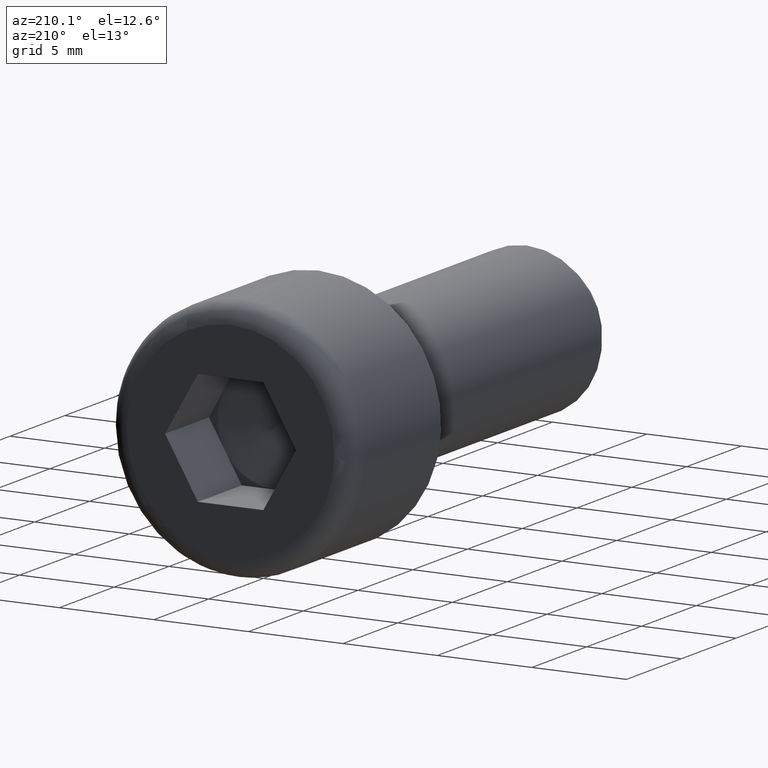
[diagram: clean part render]
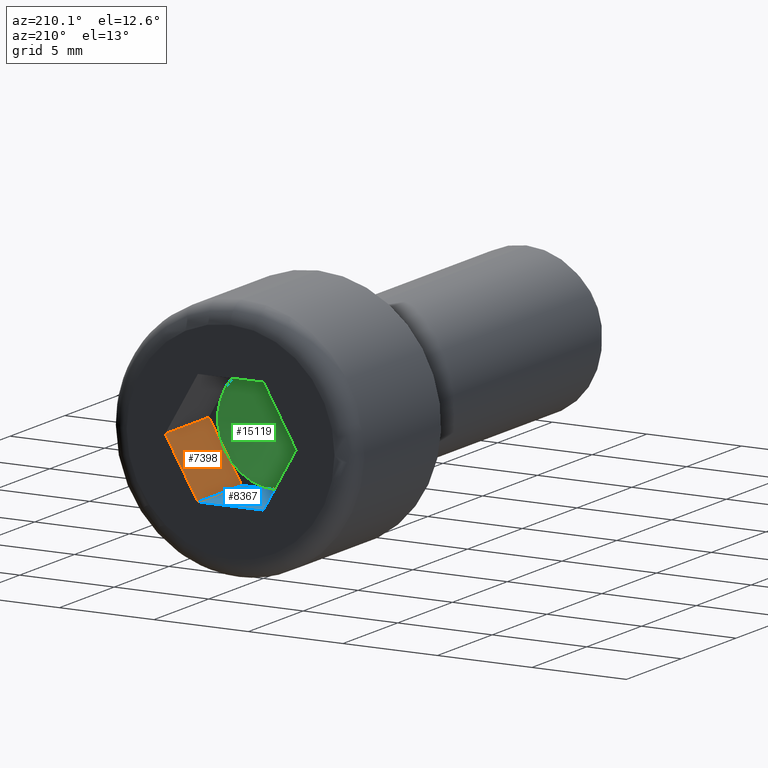
[diagram: same view with three faces highlighted in distinct colors, each labeled with its STEP entity id]
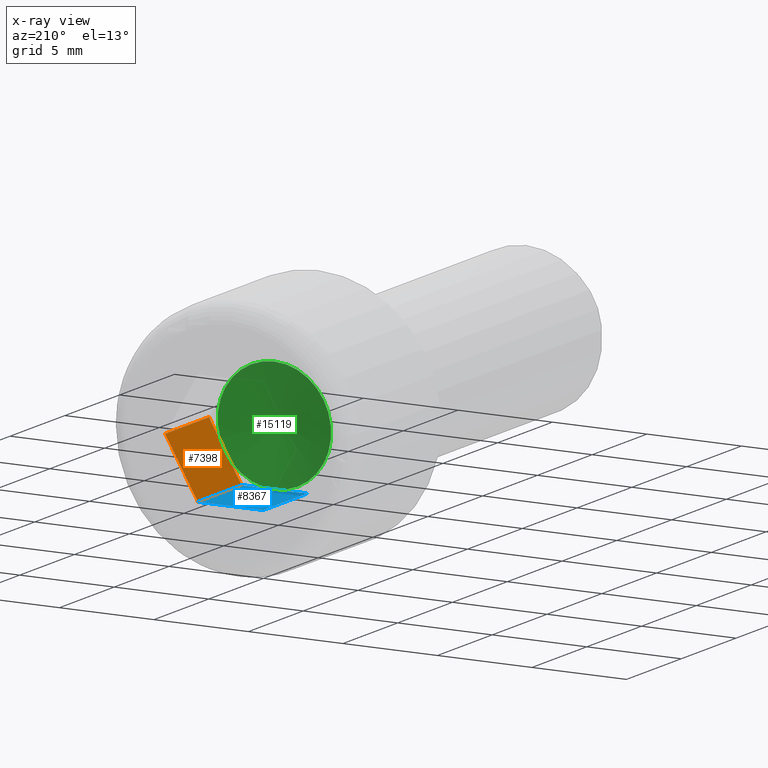
[diagram: x-ray of the same camera — body ghosted, the three highlighted faces saturated]
A machine part, auxiliary view with three faces highlighted in distinct colors.
The next image is the same camera in x-ray (body ghosted, the three faces saturated) — at least one of them is partly hidden behind the body in this view.
Their STEP definitions:

[orange] entity #7398 — the highlighted planar face has unit normal (0.866, 0, -0.5).
#253 = ORIENTED_EDGE ( 'NONE', *, *, #7364, .F. ) ;
#866 = CARTESIAN_POINT ( 'NONE',  ( 1.732050807568876300, 4.000000000000000000, -3.000000000000000000 ) ) ;
#2153 = VECTOR ( 'NONE', #7741, 1000.000000000000200 ) ;
#2379 = CARTESIAN_POINT ( 'NONE',  ( 2.598076211353315600, 3.999999999999999100, -1.500000000000000900 ) ) ;
#2589 = CARTESIAN_POINT ( 'NONE',  ( 1.732050807568876300, 4.000000000000000000, -3.000000000000000000 ) ) ;
#2666 = DIRECTION ( 'NONE',  ( 0.8660254037844386000, 0.0000000000000000000, -0.5000000000000003300 ) ) ;
#2729 = EDGE_CURVE ( 'NONE', #10039, #8690, #3516, .T. ) ;
#2732 = CARTESIAN_POINT ( 'NONE',  ( 3.464101615137755300, 8.000000000000000000, 8.032070669435346800E-016 ) ) ;
#3461 = EDGE_LOOP ( 'NONE', ( #16284, #8264, #16336, #253, #10203 ) ) ;
#3516 = LINE ( 'NONE', #9917, #17023 ) ;
#3703 = LINE ( 'NONE', #2589, #6183 ) ;
#4663 = EDGE_CURVE ( 'NONE', #5380, #10530, #3703, .T. ) ;
#4692 = FACE_OUTER_BOUND ( 'NONE', #3461, .T. ) ;
#4991 = DIRECTION ( 'NONE',  ( -0.5000000000000002200, 0.0000000000000000000, -0.8660254037844384900 ) ) ;
#5380 = VERTEX_POINT ( 'NONE', #866 ) ;
#5855 = DIRECTION ( 'NONE',  ( -0.0000000000000000000, 1.000000000000000000, -0.0000000000000000000 ) ) ;
#6134 = LINE ( 'NONE', #11642, #16553 ) ;
#6183 = VECTOR ( 'NONE', #11921, 1000.000000000000000 ) ;
#7311 = EDGE_CURVE ( 'NONE', #8690, #10530, #13036, .T. ) ;
#7364 = EDGE_CURVE ( 'NONE', #10039, #13047, #6134, .T. ) ;
#7398 = ADVANCED_FACE ( 'NONE', ( #4692 ), #17273, .F. ) ;
#7741 = DIRECTION ( 'NONE',  ( -0.5000000000000002200, 0.0000000000000000000, -0.8660254037844384900 ) ) ;
#8264 = ORIENTED_EDGE ( 'NONE', *, *, #4663, .F. ) ;
#8690 = VERTEX_POINT ( 'NONE', #2732 ) ;
#8970 = AXIS2_PLACEMENT_3D ( 'NONE', #14774, #2666, #12003 ) ;
#9599 = EDGE_CURVE ( 'NONE', #13047, #5380, #12814, .T. ) ;
#9917 = CARTESIAN_POINT ( 'NONE',  ( 3.464101615137755300, 4.000000000000000000, 8.032070669435346800E-016 ) ) ;
#10039 = VERTEX_POINT ( 'NONE', #12736 ) ;
#10203 = ORIENTED_EDGE ( 'NONE', *, *, #2729, .T. ) ;
#10233 = CARTESIAN_POINT ( 'NONE',  ( 3.464101615137755300, 8.000000000000000000, 8.032070669435346800E-016 ) ) ;
#10477 = CARTESIAN_POINT ( 'NONE',  ( 3.464101615137755300, 4.000000000000000000, 8.032070669435346800E-016 ) ) ;
#10530 = VERTEX_POINT ( 'NONE', #15081 ) ;
#11642 = CARTESIAN_POINT ( 'NONE',  ( 3.464101615137755300, 4.000000000000000000, 8.032070669435346800E-016 ) ) ;
#11921 = DIRECTION ( 'NONE',  ( -0.0000000000000000000, 1.000000000000000000, -0.0000000000000000000 ) ) ;
#12003 = DIRECTION ( 'NONE',  ( -0.5000000000000002200, 0.0000000000000000000, -0.8660254037844384900 ) ) ;
#12736 = CARTESIAN_POINT ( 'NONE',  ( 3.464101615137755300, 4.000000000000000000, 8.032070669435346800E-016 ) ) ;
#12814 = LINE ( 'NONE', #10477, #2153 ) ;
#13036 = LINE ( 'NONE', #10233, #16951 ) ;
#13047 = VERTEX_POINT ( 'NONE', #2379 ) ;
#14356 = DIRECTION ( 'NONE',  ( -0.5000000000000002200, 0.0000000000000000000, -0.8660254037844384900 ) ) ;
#14774 = CARTESIAN_POINT ( 'NONE',  ( 3.464101615137755300, 4.000000000000000000, 8.032070669435346800E-016 ) ) ;
#15081 = CARTESIAN_POINT ( 'NONE',  ( 1.732050807568876300, 8.000000000000000000, -3.000000000000000000 ) ) ;
#16284 = ORIENTED_EDGE ( 'NONE', *, *, #7311, .T. ) ;
#16336 = ORIENTED_EDGE ( 'NONE', *, *, #9599, .F. ) ;
#16553 = VECTOR ( 'NONE', #4991, 1000.000000000000200 ) ;
#16951 = VECTOR ( 'NONE', #14356, 1000.000000000000200 ) ;
#17023 = VECTOR ( 'NONE', #5855, 1000.000000000000000 ) ;
#17273 = PLANE ( 'NONE',  #8970 ) ;

[blue] entity #8367 — the highlighted planar face has unit normal (-0, 0, -1).
#632 = DIRECTION ( 'NONE',  ( -1.000000000000000000, 0.0000000000000000000, 1.251928832280966200E-016 ) ) ;
#866 = CARTESIAN_POINT ( 'NONE',  ( 1.732050807568876300, 4.000000000000000000, -3.000000000000000000 ) ) ;
#1323 = LINE ( 'NONE', #14448, #1945 ) ;
#1564 = VECTOR ( 'NONE', #632, 1000.000000000000000 ) ;
#1655 = DIRECTION ( 'NONE',  ( -1.000000000000000000, 0.0000000000000000000, 1.251928832280966200E-016 ) ) ;
#1785 = LINE ( 'NONE', #6263, #4696 ) ;
#1797 = LINE ( 'NONE', #2686, #13872 ) ;
#1945 = VECTOR ( 'NONE', #5312, 1000.000000000000000 ) ;
#2589 = CARTESIAN_POINT ( 'NONE',  ( 1.732050807568876300, 4.000000000000000000, -3.000000000000000000 ) ) ;
#2686 = CARTESIAN_POINT ( 'NONE',  ( -1.732050807568877400, 4.000000000000000000, -2.999999999999999600 ) ) ;
#2880 = ORIENTED_EDGE ( 'NONE', *, *, #16757, .F. ) ;
#3057 = CARTESIAN_POINT ( 'NONE',  ( 1.732050807568876300, 4.000000000000000000, -3.000000000000000000 ) ) ;
#3703 = LINE ( 'NONE', #2589, #6183 ) ;
#3957 = VERTEX_POINT ( 'NONE', #6752 ) ;
#4480 = FACE_OUTER_BOUND ( 'NONE', #14925, .T. ) ;
#4663 = EDGE_CURVE ( 'NONE', #5380, #10530, #3703, .T. ) ;
#4696 = VECTOR ( 'NONE', #11568, 1000.000000000000000 ) ;
#4824 = CARTESIAN_POINT ( 'NONE',  ( 1.732050807568876300, 8.000000000000000000, -3.000000000000000000 ) ) ;
#5074 = ORIENTED_EDGE ( 'NONE', *, *, #5803, .F. ) ;
#5100 = LINE ( 'NONE', #4824, #1564 ) ;
#5312 = DIRECTION ( 'NONE',  ( -1.000000000000000000, 0.0000000000000000000, 1.251928832280966200E-016 ) ) ;
#5380 = VERTEX_POINT ( 'NONE', #866 ) ;
#5672 = ORIENTED_EDGE ( 'NONE', *, *, #7789, .T. ) ;
#5674 = PLANE ( 'NONE',  #10302 ) ;
#5803 = EDGE_CURVE ( 'NONE', #14349, #3957, #1797, .T. ) ;
#6047 = CARTESIAN_POINT ( 'NONE',  ( -1.732050807568877400, 4.000000000000000000, -2.999999999999999600 ) ) ;
#6183 = VECTOR ( 'NONE', #11921, 1000.000000000000000 ) ;
#6263 = CARTESIAN_POINT ( 'NONE',  ( 1.732050807568876300, 4.000000000000000000, -3.000000000000000000 ) ) ;
#6492 = VERTEX_POINT ( 'NONE', #16638 ) ;
#6752 = CARTESIAN_POINT ( 'NONE',  ( -1.732050807568877400, 8.000000000000000000, -2.999999999999999600 ) ) ;
#7425 = ORIENTED_EDGE ( 'NONE', *, *, #9333, .F. ) ;
#7789 = EDGE_CURVE ( 'NONE', #10530, #3957, #5100, .T. ) ;
#8367 = ADVANCED_FACE ( 'NONE', ( #4480 ), #5674, .F. ) ;
#9333 = EDGE_CURVE ( 'NONE', #5380, #6492, #1323, .T. ) ;
#10302 = AXIS2_PLACEMENT_3D ( 'NONE', #3057, #12389, #1655 ) ;
#10530 = VERTEX_POINT ( 'NONE', #15081 ) ;
#11568 = DIRECTION ( 'NONE',  ( -1.000000000000000000, 0.0000000000000000000, 1.251928832280966200E-016 ) ) ;
#11921 = DIRECTION ( 'NONE',  ( -0.0000000000000000000, 1.000000000000000000, -0.0000000000000000000 ) ) ;
#12389 = DIRECTION ( 'NONE',  ( -1.251928832280966200E-016, 0.0000000000000000000, -1.000000000000000000 ) ) ;
#13420 = DIRECTION ( 'NONE',  ( -0.0000000000000000000, 1.000000000000000000, -0.0000000000000000000 ) ) ;
#13872 = VECTOR ( 'NONE', #13420, 1000.000000000000000 ) ;
#14349 = VERTEX_POINT ( 'NONE', #6047 ) ;
#14448 = CARTESIAN_POINT ( 'NONE',  ( 1.732050807568876300, 4.000000000000000000, -3.000000000000000000 ) ) ;
#14925 = EDGE_LOOP ( 'NONE', ( #5672, #5074, #2880, #7425, #16768 ) ) ;
#15081 = CARTESIAN_POINT ( 'NONE',  ( 1.732050807568876300, 8.000000000000000000, -3.000000000000000000 ) ) ;
#16638 = CARTESIAN_POINT ( 'NONE',  ( -5.333242336302395600E-016, 3.999999999999998200, -3.000000000000000000 ) ) ;
#16757 = EDGE_CURVE ( 'NONE', #6492, #14349, #1785, .T. ) ;
#16768 = ORIENTED_EDGE ( 'NONE', *, *, #4663, .T. ) ;

[green] entity #15119 — the highlighted conical surface has half-angle 80.538 deg.
#11 = DIRECTION ( 'NONE',  ( -3.154911678919006400E-016, 1.000000000000000000, -0.0000000000000000000 ) ) ;
#177 = DIRECTION ( 'NONE',  ( -3.154911678919006400E-016, 1.000000000000000000, -0.0000000000000000000 ) ) ;
#313 = AXIS2_PLACEMENT_3D ( 'NONE', #9557, #177, #5356 ) ;
#554 = CIRCLE ( 'NONE', #16521, 3.000000000000000000 ) ;
#753 = DIRECTION ( 'NONE',  ( -3.154911678919006400E-016, 1.000000000000000000, -0.0000000000000000000 ) ) ;
#2379 = CARTESIAN_POINT ( 'NONE',  ( 2.598076211353315600, 3.999999999999999100, -1.500000000000000900 ) ) ;
#2576 = CARTESIAN_POINT ( 'NONE',  ( -1.577455839459496000E-016, 3.999999999999998200, 0.0000000000000000000 ) ) ;
#2813 = CARTESIAN_POINT ( 'NONE',  ( -1.577455839459496000E-016, 3.999999999999998200, 0.0000000000000000000 ) ) ;
#3653 = AXIS2_PLACEMENT_3D ( 'NONE', #3905, #13231, #7917 ) ;
#3698 = CARTESIAN_POINT ( 'NONE',  ( -2.598076211353315600, 3.999999999999997300, -1.499999999999999800 ) ) ;
#3905 = CARTESIAN_POINT ( 'NONE',  ( -1.577455839459496000E-016, 3.999999999999998200, 0.0000000000000000000 ) ) ;
#4616 = CIRCLE ( 'NONE', #3653, 3.000000000000000000 ) ;
#4999 = EDGE_CURVE ( 'NONE', #9882, #7329, #554, .T. ) ;
#5120 = ORIENTED_EDGE ( 'NONE', *, *, #14008, .T. ) ;
#5356 = DIRECTION ( 'NONE',  ( -1.000000000000000000, -3.330669073875453800E-016, 0.0000000000000000000 ) ) ;
#6062 = DIRECTION ( 'NONE',  ( -1.000000000000000000, -2.891205793294678300E-016, 0.0000000000000000000 ) ) ;
#6126 = EDGE_CURVE ( 'NONE', #13047, #6492, #6792, .T. ) ;
#6492 = VERTEX_POINT ( 'NONE', #16638 ) ;
#6547 = CIRCLE ( 'NONE', #16548, 3.000000000000000000 ) ;
#6560 = DIRECTION ( 'NONE',  ( -3.154911678919006400E-016, 1.000000000000000000, -0.0000000000000000000 ) ) ;
#6792 = CIRCLE ( 'NONE', #7172, 3.000000000000000000 ) ;
#7172 = AXIS2_PLACEMENT_3D ( 'NONE', #13032, #6560, #10275 ) ;
#7329 = VERTEX_POINT ( 'NONE', #7678 ) ;
#7470 = VERTEX_POINT ( 'NONE', #14321 ) ;
#7523 = VERTEX_POINT ( 'NONE', #9510 ) ;
#7678 = CARTESIAN_POINT ( 'NONE',  ( -2.598076211353315600, 3.999999999999997300, 1.500000000000000200 ) ) ;
#7681 = AXIS2_PLACEMENT_3D ( 'NONE', #15304, #8753, #6062 ) ;
#7754 = DIRECTION ( 'NONE',  ( -1.000000000000000000, -2.891205793294678300E-016, 0.0000000000000000000 ) ) ;
#7917 = DIRECTION ( 'NONE',  ( -1.000000000000000000, -2.891205793294678300E-016, 0.0000000000000000000 ) ) ;
#8056 = DIRECTION ( 'NONE',  ( -1.000000000000000000, -2.891205793294678300E-016, 0.0000000000000000000 ) ) ;
#8296 = ORIENTED_EDGE ( 'NONE', *, *, #9520, .T. ) ;
#8753 = DIRECTION ( 'NONE',  ( -3.154911678919006400E-016, 1.000000000000000000, -0.0000000000000000000 ) ) ;
#8967 = CIRCLE ( 'NONE', #14025, 3.000000000000000000 ) ;
#9510 = CARTESIAN_POINT ( 'NONE',  ( 2.598076211353316000, 3.999999999999999100, 1.500000000000000900 ) ) ;
#9520 = EDGE_CURVE ( 'NONE', #7470, #7523, #6547, .T. ) ;
#9557 = CARTESIAN_POINT ( 'NONE',  ( -3.154911678919006500E-013, 1003.500000000000100, 0.0000000000000000000 ) ) ;
#9679 = ORIENTED_EDGE ( 'NONE', *, *, #15569, .T. ) ;
#9734 = CIRCLE ( 'NONE', #7681, 3.000000000000000000 ) ;
#9882 = VERTEX_POINT ( 'NONE', #3698 ) ;
#9981 = DIRECTION ( 'NONE',  ( -3.154911678919006400E-016, 1.000000000000000000, -0.0000000000000000000 ) ) ;
#10275 = DIRECTION ( 'NONE',  ( -1.000000000000000000, -2.891205793294678300E-016, 0.0000000000000000000 ) ) ;
#12995 = EDGE_CURVE ( 'NONE', #6492, #9882, #4616, .T. ) ;
#13032 = CARTESIAN_POINT ( 'NONE',  ( -1.577455839459496000E-016, 3.999999999999998200, 0.0000000000000000000 ) ) ;
#13047 = VERTEX_POINT ( 'NONE', #2379 ) ;
#13231 = DIRECTION ( 'NONE',  ( -3.154911678919006400E-016, 1.000000000000000000, -0.0000000000000000000 ) ) ;
#14008 = EDGE_CURVE ( 'NONE', #7329, #7470, #8967, .T. ) ;
#14025 = AXIS2_PLACEMENT_3D ( 'NONE', #16607, #9981, #14160 ) ;
#14160 = DIRECTION ( 'NONE',  ( -1.000000000000000000, -2.891205793294678300E-016, 0.0000000000000000000 ) ) ;
#14321 = CARTESIAN_POINT ( 'NONE',  ( -1.577455839459496000E-016, 3.999999999999998200, 3.000000000000000000 ) ) ;
#14582 = ORIENTED_EDGE ( 'NONE', *, *, #4999, .T. ) ;
#15119 = ADVANCED_FACE ( 'NONE', ( #17244 ), #16815, .F. ) ;
#15304 = CARTESIAN_POINT ( 'NONE',  ( -1.577455839459496000E-016, 3.999999999999998200, 0.0000000000000000000 ) ) ;
#15569 = EDGE_CURVE ( 'NONE', #7523, #13047, #9734, .T. ) ;
#16102 = ORIENTED_EDGE ( 'NONE', *, *, #6126, .T. ) ;
#16270 = EDGE_LOOP ( 'NONE', ( #5120, #8296, #9679, #16102, #16417, #14582 ) ) ;
#16417 = ORIENTED_EDGE ( 'NONE', *, *, #12995, .T. ) ;
#16521 = AXIS2_PLACEMENT_3D ( 'NONE', #2576, #753, #7754 ) ;
#16548 = AXIS2_PLACEMENT_3D ( 'NONE', #2813, #11, #8056 ) ;
#16607 = CARTESIAN_POINT ( 'NONE',  ( -1.577455839459496000E-016, 3.999999999999998200, 0.0000000000000000000 ) ) ;
#16638 = CARTESIAN_POINT ( 'NONE',  ( -5.333242336302395600E-016, 3.999999999999998200, -3.000000000000000000 ) ) ;
#16815 = CONICAL_SURFACE ( 'NONE', #313, 6000.000000000028200, 1.405647649380270500 ) ;
#17244 = FACE_OUTER_BOUND ( 'NONE', #16270, .T. ) ;